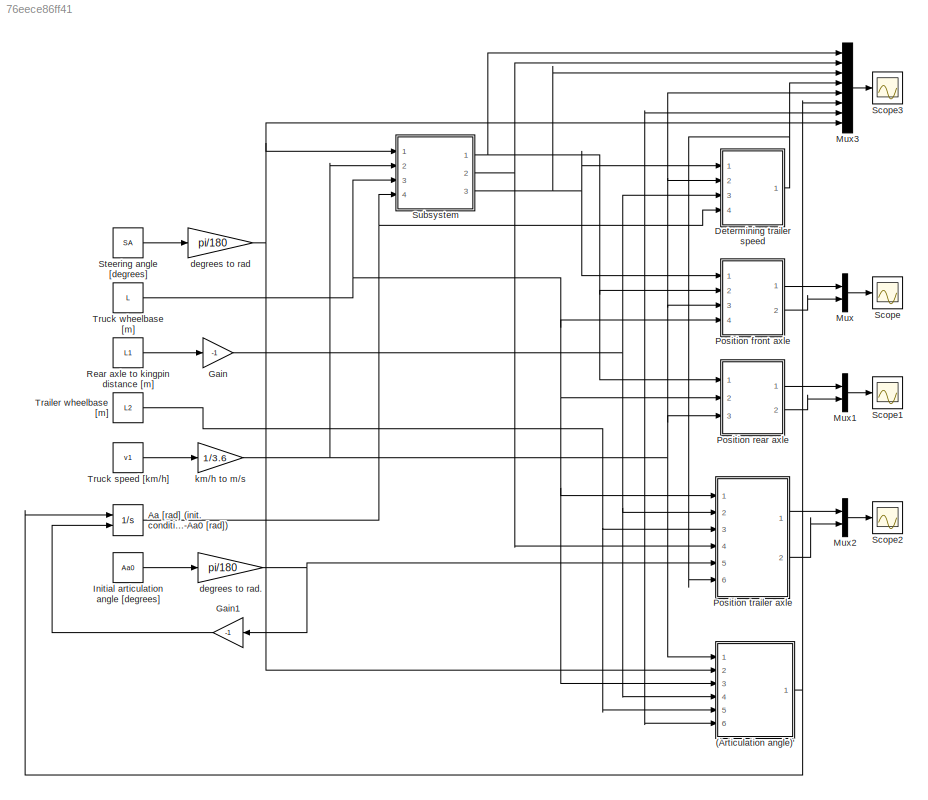
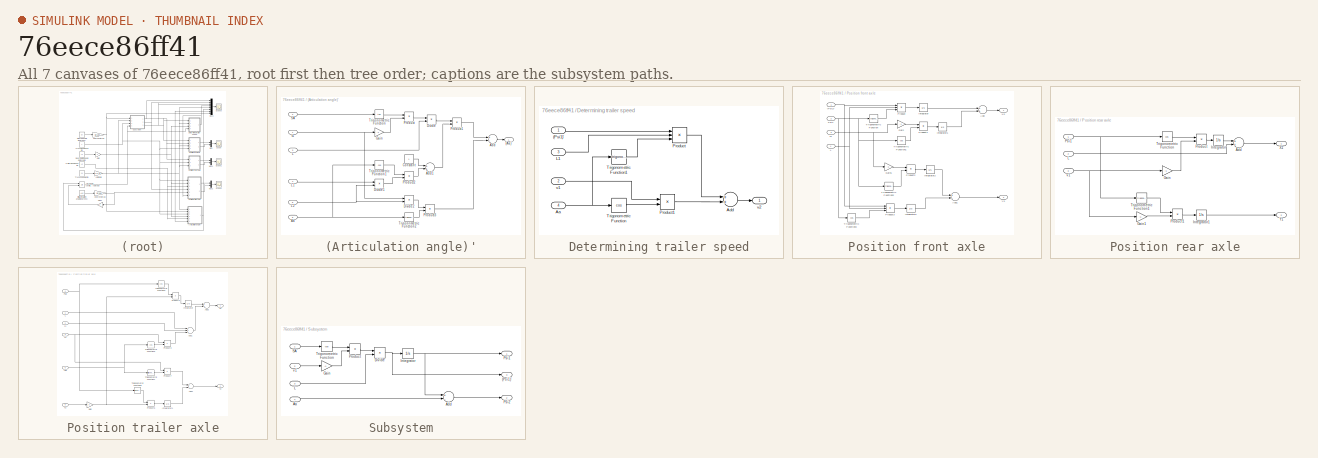
[diagram: thumbnail index - all 7 canvases of the model, root first then tree order]
MODEL slx_76eece86ff41
KIND model
CONFIG AbsTol = auto
CONFIG FixedStep = auto
CONFIG MaxStep = auto
CONFIG MinStep = auto
CONFIG RelTol = 1e-3
CONFIG SampleTimeConstraint = Unconstrained
CONFIG Solver = ode45
CONFIG SolverMode = Auto
CONFIG SolverName = ode45
CONFIG StartTime = 0.0
CONFIG StopTime = 80
BLOCK [SubSystem] (Articulation angle)'
  Ports = [6, 1]
  RequestExecContextInheritance = off
BLOCK [Outport] (Articulation angle)'/(Aa)'
  IconDisplay = Port number
BLOCK [Inport] (Articulation angle)'/Aa
  IconDisplay = Port number
  Port = 6
BLOCK [Sum] (Articulation angle)'/Add
  InputSameDT = off
  Inputs = +-
  OutDataTypeStr = Inherit: Inherit via internal rule
  Ports = [2, 1]
  SaturateOnIntegerOverflow = off
BLOCK [Sum] (Articulation angle)'/Add1
  InputSameDT = off
  OutDataTypeStr = Inherit: Inherit via internal rule
  Ports = [2, 1]
  SaturateOnIntegerOverflow = off
BLOCK [Constant] (Articulation angle)'/Constant
BLOCK [Product] (Articulation angle)'/Divide
  InputSameDT = off
  Inputs = */
  OutDataTypeStr = Inherit: Inherit via internal rule
  Ports = [2, 1]
  RndMeth = Floor
  SaturateOnIntegerOverflow = off
BLOCK [Product] (Articulation angle)'/Divide1
  InputSameDT = off
  Inputs = */
  OutDataTypeStr = Inherit: Inherit via internal rule
  Ports = [2, 1]
  RndMeth = Floor
  SaturateOnIntegerOverflow = off
BLOCK [Product] (Articulation angle)'/Divide2
  InputSameDT = off
  Inputs = */
  OutDataTypeStr = Inherit: Inherit via internal rule
  Ports = [2, 1]
  RndMeth = Floor
  SaturateOnIntegerOverflow = off
BLOCK [Gain] (Articulation angle)'/Gain
  Gain = -1
  OutDataTypeStr = Inherit: Inherit via internal rule
  ParamDataTypeStr = Inherit: Inherit via internal rule
  SaturateOnIntegerOverflow = off
BLOCK [Inport] (Articulation angle)'/L
  IconDisplay = Port number
  Port = 3
BLOCK [Inport] (Articulation angle)'/L1
  IconDisplay = Port number
  Port = 4
BLOCK [Inport] (Articulation angle)'/L2
  IconDisplay = Port number
  Port = 5
BLOCK [Product] (Articulation angle)'/Product
  InputSameDT = off
  OutDataTypeStr = Inherit: Inherit via internal rule
  Ports = [2, 1]
  RndMeth = Floor
  SaturateOnIntegerOverflow = off
BLOCK [Product] (Articulation angle)'/Product1
  InputSameDT = off
  OutDataTypeStr = Inherit: Inherit via internal rule
  Ports = [2, 1]
  RndMeth = Floor
  SaturateOnIntegerOverflow = off
BLOCK [Product] (Articulation angle)'/Product2
  InputSameDT = off
  OutDataTypeStr = Inherit: Inherit via internal rule
  Ports = [2, 1]
  RndMeth = Floor
  SaturateOnIntegerOverflow = off
BLOCK [Product] (Articulation angle)'/Product3
  InputSameDT = off
  OutDataTypeStr = Inherit: Inherit via internal rule
  Ports = [2, 1]
  RndMeth = Floor
  SaturateOnIntegerOverflow = off
BLOCK [Inport] (Articulation angle)'/SA
  IconDisplay = Port number
  Port = 2
BLOCK [Trigonometry] (Articulation angle)'/Trigonometric Function
  Operator = tan
  Ports = [1, 1]
BLOCK [Trigonometry] (Articulation angle)'/Trigonometric Function1
  Operator = cos
  Ports = [1, 1]
BLOCK [Trigonometry] (Articulation angle)'/Trigonometric Function2
  Ports = [1, 1]
BLOCK [Inport] (Articulation angle)'/v1
  IconDisplay = Port number
BLOCK [Integrator] Aa [rad] (init. condition = -Aa0 [rad])
  InitialCondition = ((-Aa0*pi)/180)
  InitialConditionSource = external
  Ports = [2, 1]
BLOCK [SubSystem] Determining trailer speed
  Ports = [4, 1]
  RequestExecContextInheritance = off
BLOCK [Inport] Determining trailer speed/(Psi1)'
  IconDisplay = Port number
BLOCK [Inport] Determining trailer speed/Aa
  IconDisplay = Port number
  Port = 4
BLOCK [Sum] Determining trailer speed/Add
  InputSameDT = off
  OutDataTypeStr = Inherit: Inherit via internal rule
  Ports = [2, 1]
  SaturateOnIntegerOverflow = off
BLOCK [Inport] Determining trailer speed/L1
  IconDisplay = Port number
  Port = 3
BLOCK [Product] Determining trailer speed/Product
  InputSameDT = off
  Inputs = 3
  OutDataTypeStr = Inherit: Inherit via internal rule
  Ports = [3, 1]
  RndMeth = Floor
  SaturateOnIntegerOverflow = off
BLOCK [Product] Determining trailer speed/Product1
  InputSameDT = off
  OutDataTypeStr = Inherit: Inherit via internal rule
  Ports = [2, 1]
  RndMeth = Floor
  SaturateOnIntegerOverflow = off
BLOCK [Trigonometry] Determining trailer speed/Trigonometric Function
  Operator = cos
  Ports = [1, 1]
BLOCK [Trigonometry] Determining trailer speed/Trigonometric Function1
  Ports = [1, 1]
BLOCK [Inport] Determining trailer speed/v1
  IconDisplay = Port number
  Port = 2
BLOCK [Outport] Determining trailer speed/v2
  IconDisplay = Port number
BLOCK [Gain] Gain
  Gain = -1
  OutDataTypeStr = Inherit: Inherit via internal rule
  ParamDataTypeStr = Inherit: Inherit via internal rule
  SaturateOnIntegerOverflow = off
BLOCK [Gain] Gain1
  Gain = -1
  OutDataTypeStr = Inherit: Inherit via internal rule
  ParamDataTypeStr = Inherit: Inherit via internal rule
  SaturateOnIntegerOverflow = off
BLOCK [Constant] Initial articulation angle [degrees]
  Value = Aa0
BLOCK [Mux] Mux
  DisplayOption = bar
  Inputs = 2
  Ports = [2, 1]
BLOCK [Mux] Mux1
  DisplayOption = bar
  Inputs = 2
  Ports = [2, 1]
BLOCK [Mux] Mux2
  DisplayOption = bar
  Inputs = 2
  Ports = [2, 1]
BLOCK [Mux] Mux3
  DisplayOption = bar
  Inputs = 8
  Ports = [8, 1]
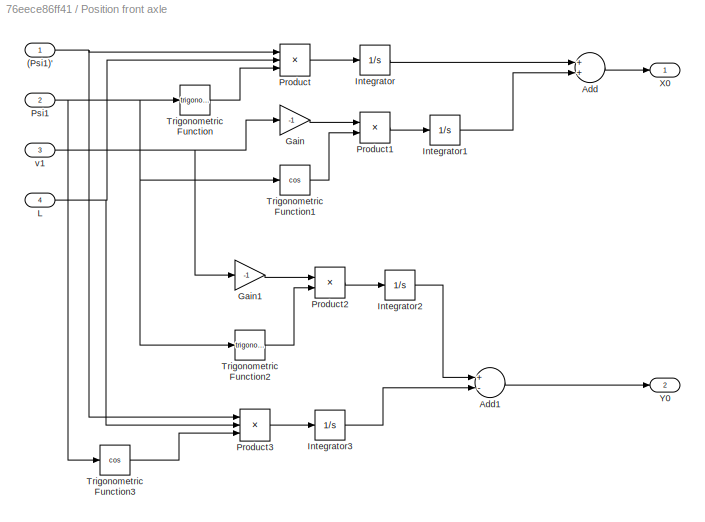
BLOCK [SubSystem] Position front axle
  Ports = [4, 2]
  RequestExecContextInheritance = off
BLOCK [Inport] Position front axle/(Psi1)'
  IconDisplay = Port number
BLOCK [Sum] Position front axle/Add
  InputSameDT = off
  OutDataTypeStr = Inherit: Inherit via internal rule
  Ports = [2, 1]
  SaturateOnIntegerOverflow = off
BLOCK [Sum] Position front axle/Add1
  InputSameDT = off
  Inputs = +-
  OutDataTypeStr = Inherit: Inherit via internal rule
  Ports = [2, 1]
  SaturateOnIntegerOverflow = off
BLOCK [Gain] Position front axle/Gain
  Gain = -1
  OutDataTypeStr = Inherit: Inherit via internal rule
  ParamDataTypeStr = Inherit: Inherit via internal rule
  SaturateOnIntegerOverflow = off
BLOCK [Gain] Position front axle/Gain1
  Gain = -1
  OutDataTypeStr = Inherit: Inherit via internal rule
  ParamDataTypeStr = Inherit: Inherit via internal rule
  SaturateOnIntegerOverflow = off
BLOCK [Integrator] Position front axle/Integrator
  Ports = [1, 1]
BLOCK [Integrator] Position front axle/Integrator1
  Ports = [1, 1]
BLOCK [Integrator] Position front axle/Integrator2
  Ports = [1, 1]
BLOCK [Integrator] Position front axle/Integrator3
  Ports = [1, 1]
BLOCK [Inport] Position front axle/L
  IconDisplay = Port number
  Port = 4
BLOCK [Product] Position front axle/Product
  InputSameDT = off
  Inputs = 3
  OutDataTypeStr = Inherit: Inherit via internal rule
  Ports = [3, 1]
  RndMeth = Floor
  SaturateOnIntegerOverflow = off
BLOCK [Product] Position front axle/Product1
  InputSameDT = off
  OutDataTypeStr = Inherit: Inherit via internal rule
  Ports = [2, 1]
  RndMeth = Floor
  SaturateOnIntegerOverflow = off
BLOCK [Product] Position front axle/Product2
  InputSameDT = off
  OutDataTypeStr = Inherit: Inherit via internal rule
  Ports = [2, 1]
  RndMeth = Floor
  SaturateOnIntegerOverflow = off
BLOCK [Product] Position front axle/Product3
  InputSameDT = off
  Inputs = 3
  OutDataTypeStr = Inherit: Inherit via internal rule
  Ports = [3, 1]
  RndMeth = Floor
  SaturateOnIntegerOverflow = off
BLOCK [Inport] Position front axle/Psi1
  IconDisplay = Port number
  Port = 2
BLOCK [Trigonometry] Position front axle/Trigonometric Function
  Ports = [1, 1]
BLOCK [Trigonometry] Position front axle/Trigonometric Function1
  Operator = cos
  Ports = [1, 1]
BLOCK [Trigonometry] Position front axle/Trigonometric Function2
  Ports = [1, 1]
BLOCK [Trigonometry] Position front axle/Trigonometric Function3
  Operator = cos
  Ports = [1, 1]
BLOCK [Outport] Position front axle/X0
  IconDisplay = Port number
BLOCK [Outport] Position front axle/Y0
  IconDisplay = Port number
  Port = 2
BLOCK [Inport] Position front axle/v1
  IconDisplay = Port number
  Port = 3
BLOCK [SubSystem] Position rear axle
  Ports = [3, 2]
  RequestExecContextInheritance = off
BLOCK [Sum] Position rear axle/Add
  InputSameDT = off
  OutDataTypeStr = Inherit: Inherit via internal rule
  Ports = [2, 1]
  SaturateOnIntegerOverflow = off
BLOCK [Gain] Position rear axle/Gain
  Gain = -1
  OutDataTypeStr = Inherit: Inherit via internal rule
  ParamDataTypeStr = Inherit: Inherit via internal rule
  SaturateOnIntegerOverflow = off
BLOCK [Gain] Position rear axle/Gain1
  Gain = -1
  OutDataTypeStr = Inherit: Inherit via internal rule
  ParamDataTypeStr = Inherit: Inherit via internal rule
  SaturateOnIntegerOverflow = off
BLOCK [Integrator] Position rear axle/Integrator
  Ports = [1, 1]
BLOCK [Integrator] Position rear axle/Integrator1
  Ports = [1, 1]
BLOCK [Inport] Position rear axle/L
  IconDisplay = Port number
  Port = 2
BLOCK [Product] Position rear axle/Product
  InputSameDT = off
  OutDataTypeStr = Inherit: Inherit via internal rule
  Ports = [2, 1]
  RndMeth = Floor
  SaturateOnIntegerOverflow = off
BLOCK [Product] Position rear axle/Product1
  InputSameDT = off
  OutDataTypeStr = Inherit: Inherit via internal rule
  Ports = [2, 1]
  RndMeth = Floor
  SaturateOnIntegerOverflow = off
BLOCK [Inport] Position rear axle/Psi1
  IconDisplay = Port number
BLOCK [Trigonometry] Position rear axle/Trigonometric Function
  Operator = cos
  Ports = [1, 1]
BLOCK [Trigonometry] Position rear axle/Trigonometric Function1
  Ports = [1, 1]
BLOCK [Outport] Position rear axle/X1
  IconDisplay = Port number
BLOCK [Outport] Position rear axle/Y1
  IconDisplay = Port number
  Port = 2
BLOCK [Inport] Position rear axle/v1
  IconDisplay = Port number
  Port = 3
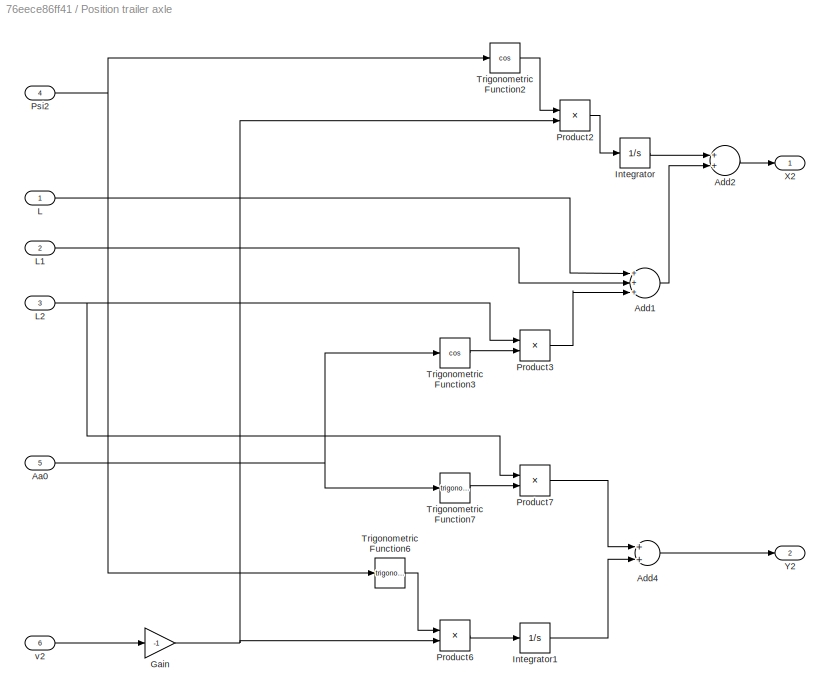
BLOCK [SubSystem] Position trailer axle
  Ports = [6, 2]
  RequestExecContextInheritance = off
BLOCK [Inport] Position trailer axle/Aa0
  IconDisplay = Port number
  Port = 5
BLOCK [Sum] Position trailer axle/Add1
  InputSameDT = off
  Inputs = +++
  OutDataTypeStr = Inherit: Inherit via internal rule
  Ports = [3, 1]
  SaturateOnIntegerOverflow = off
BLOCK [Sum] Position trailer axle/Add2
  InputSameDT = off
  OutDataTypeStr = Inherit: Inherit via internal rule
  Ports = [2, 1]
  SaturateOnIntegerOverflow = off
BLOCK [Sum] Position trailer axle/Add4
  InputSameDT = off
  OutDataTypeStr = Inherit: Inherit via internal rule
  Ports = [2, 1]
  SaturateOnIntegerOverflow = off
BLOCK [Gain] Position trailer axle/Gain
  Gain = -1
  OutDataTypeStr = Inherit: Inherit via internal rule
  ParamDataTypeStr = Inherit: Inherit via internal rule
  SaturateOnIntegerOverflow = off
BLOCK [Integrator] Position trailer axle/Integrator
  Ports = [1, 1]
BLOCK [Integrator] Position trailer axle/Integrator1
  Ports = [1, 1]
BLOCK [Inport] Position trailer axle/L
  IconDisplay = Port number
BLOCK [Inport] Position trailer axle/L1
  IconDisplay = Port number
  Port = 2
BLOCK [Inport] Position trailer axle/L2
  IconDisplay = Port number
  Port = 3
BLOCK [Product] Position trailer axle/Product2
  InputSameDT = off
  OutDataTypeStr = Inherit: Inherit via internal rule
  Ports = [2, 1]
  RndMeth = Floor
  SaturateOnIntegerOverflow = off
BLOCK [Product] Position trailer axle/Product3
  InputSameDT = off
  OutDataTypeStr = Inherit: Inherit via internal rule
  Ports = [2, 1]
  RndMeth = Floor
  SaturateOnIntegerOverflow = off
BLOCK [Product] Position trailer axle/Product6
  InputSameDT = off
  OutDataTypeStr = Inherit: Inherit via internal rule
  Ports = [2, 1]
  RndMeth = Floor
  SaturateOnIntegerOverflow = off
BLOCK [Product] Position trailer axle/Product7
  InputSameDT = off
  OutDataTypeStr = Inherit: Inherit via internal rule
  Ports = [2, 1]
  RndMeth = Floor
  SaturateOnIntegerOverflow = off
BLOCK [Inport] Position trailer axle/Psi2
  IconDisplay = Port number
  Port = 4
BLOCK [Trigonometry] Position trailer axle/Trigonometric Function2
  Operator = cos
  Ports = [1, 1]
BLOCK [Trigonometry] Position trailer axle/Trigonometric Function3
  Operator = cos
  Ports = [1, 1]
BLOCK [Trigonometry] Position trailer axle/Trigonometric Function6
  Ports = [1, 1]
BLOCK [Trigonometry] Position trailer axle/Trigonometric Function7
  Ports = [1, 1]
BLOCK [Outport] Position trailer axle/X2
  IconDisplay = Port number
BLOCK [Outport] Position trailer axle/Y2
  IconDisplay = Port number
  Port = 2
BLOCK [Inport] Position trailer axle/v2
  IconDisplay = Port number
  Port = 6
BLOCK [Constant] Rear axle to kingpin distance [m]
  Value = L1
BLOCK [Scope] Scope
  Floating = off
  LimitDataPoints = off
  NumInputPorts = 1
  Ports = [1]
  SaveName = DATA0
  SaveToWorkspace = on
BLOCK [Scope] Scope1
  Floating = off
  LimitDataPoints = off
  NumInputPorts = 1
  Ports = [1]
  SaveName = DATA1
  SaveToWorkspace = on
BLOCK [Scope] Scope2
  Floating = off
  LimitDataPoints = off
  NumInputPorts = 1
  Ports = [1]
  SaveName = DATA2
  SaveToWorkspace = on
BLOCK [Scope] Scope3
  Floating = off
  LimitDataPoints = off
  NumInputPorts = 1
  Ports = [1]
  SaveName = DATA3
  SaveToWorkspace = on
BLOCK [Constant] Steering angle [degrees]
  Value = SA
BLOCK [SubSystem] Subsystem
  Ports = [4, 3]
  RequestExecContextInheritance = off
BLOCK [Outport] Subsystem/(Psi1)'
  IconDisplay = Port number
  Port = 3
BLOCK [Inport] Subsystem/Aa
  IconDisplay = Port number
  Port = 4
BLOCK [Sum] Subsystem/Add
  InputSameDT = off
  Inputs = +-
  OutDataTypeStr = Inherit: Inherit via internal rule
  Ports = [2, 1]
  SaturateOnIntegerOverflow = off
BLOCK [Product] Subsystem/Divide
  InputSameDT = off
  Inputs = */
  OutDataTypeStr = Inherit: Inherit via internal rule
  Ports = [2, 1]
  RndMeth = Floor
  SaturateOnIntegerOverflow = off
BLOCK [Gain] Subsystem/Gain
  Gain = -1
  OutDataTypeStr = Inherit: Inherit via internal rule
  ParamDataTypeStr = Inherit: Inherit via internal rule
  SaturateOnIntegerOverflow = off
BLOCK [Integrator] Subsystem/Integrator
  Ports = [1, 1]
BLOCK [Inport] Subsystem/L
  IconDisplay = Port number
  Port = 3
BLOCK [Product] Subsystem/Product
  InputSameDT = off
  OutDataTypeStr = Inherit: Inherit via internal rule
  Ports = [2, 1]
  RndMeth = Floor
  SaturateOnIntegerOverflow = off
BLOCK [Outport] Subsystem/Psi1
  IconDisplay = Port number
BLOCK [Outport] Subsystem/Psi2
  IconDisplay = Port number
  Port = 2
BLOCK [Inport] Subsystem/SA
  IconDisplay = Port number
BLOCK [Trigonometry] Subsystem/Trigonometric Function
  Operator = tan
  Ports = [1, 1]
BLOCK [Inport] Subsystem/v1
  IconDisplay = Port number
  Port = 2
BLOCK [Constant] Trailer wheelbase [m] 
  Value = L2
BLOCK [Constant] Truck speed [km//h]
  Value = v1
BLOCK [Constant] Truck wheelbase [m]
  Value = L
BLOCK [Gain] degrees to rad
  Gain = pi/180
  OutDataTypeStr = Inherit: Inherit via internal rule
  ParamDataTypeStr = Inherit: Inherit via internal rule
  SaturateOnIntegerOverflow = off
BLOCK [Gain] degrees to rad.
  Gain = pi/180
  OutDataTypeStr = Inherit: Inherit via internal rule
  ParamDataTypeStr = Inherit: Inherit via internal rule
  SaturateOnIntegerOverflow = off
BLOCK [Gain] km//h to m//s
  Gain = 1/3.6
  OutDataTypeStr = Inherit: Inherit via internal rule
  ParamDataTypeStr = Inherit: Inherit via internal rule
  SaturateOnIntegerOverflow = off
NET (Articulation angle)'/Aa:1 -> (Articulation angle)'/Trigonometric Function1:1, (Articulation angle)'/Trigonometric Function2:1
LINE (Articulation angle)'/Add1:1 -> (Articulation angle)'/Product1:2
LINE (Articulation angle)'/Add:1 -> (Articulation angle)'/(Aa)':1
LINE (Articulation angle)'/Constant:1 -> (Articulation angle)'/Add1:1
LINE (Articulation angle)'/Divide1:1 -> (Articulation angle)'/Product2:2
LINE (Articulation angle)'/Divide2:1 -> (Articulation angle)'/Product3:1
LINE (Articulation angle)'/Divide:1 -> (Articulation angle)'/Product1:1
LINE (Articulation angle)'/Gain:1 -> (Articulation angle)'/Product:2
LINE (Articulation angle)'/L1:1 -> (Articulation angle)'/Divide1:1
NET (Articulation angle)'/L2:1 -> (Articulation angle)'/Divide1:2, (Articulation angle)'/Divide2:2
LINE (Articulation angle)'/L:1 -> (Articulation angle)'/Divide:2
LINE (Articulation angle)'/Product1:1 -> (Articulation angle)'/Add:1
LINE (Articulation angle)'/Product2:1 -> (Articulation angle)'/Add1:2
LINE (Articulation angle)'/Product3:1 -> (Articulation angle)'/Add:2
LINE (Articulation angle)'/Product:1 -> (Articulation angle)'/Divide:1
LINE (Articulation angle)'/SA:1 -> (Articulation angle)'/Trigonometric Function:1
LINE (Articulation angle)'/Trigonometric Function1:1 -> (Articulation angle)'/Product2:1
LINE (Articulation angle)'/Trigonometric Function2:1 -> (Articulation angle)'/Product3:2
LINE (Articulation angle)'/Trigonometric Function:1 -> (Articulation angle)'/Product:1
NET (Articulation angle)'/v1:1 -> (Articulation angle)'/Divide2:1, (Articulation angle)'/Gain:1
NET (Articulation angle)':1 -> Aa [rad] (init. condition = -Aa0 [rad]):1, Mux3:6
NET Aa [rad] (init. condition = -Aa0 [rad]):1 -> (Articulation angle)':6, Determining trailer speed:4, Mux3:7, Subsystem:4
LINE Determining trailer speed/(Psi1)':1 -> Determining trailer speed/Product:1
NET Determining trailer speed/Aa:1 -> Determining trailer speed/Trigonometric Function1:1, Determining trailer speed/Trigonometric Function:1
LINE Determining trailer speed/Add:1 -> Determining trailer speed/v2:1
LINE Determining trailer speed/L1:1 -> Determining trailer speed/Product:2
LINE Determining trailer speed/Product1:1 -> Determining trailer speed/Add:2
LINE Determining trailer speed/Product:1 -> Determining trailer speed/Add:1
LINE Determining trailer speed/Trigonometric Function1:1 -> Determining trailer speed/Product:3
LINE Determining trailer speed/Trigonometric Function:1 -> Determining trailer speed/Product1:2
LINE Determining trailer speed/v1:1 -> Determining trailer speed/Product1:1
NET Determining trailer speed:1 -> Mux3:4, Position trailer axle:6
LINE Gain1:1 -> Aa [rad] (init. condition = -Aa0 [rad]):2
NET Gain:1 -> (Articulation angle)':4, Determining trailer speed:3, Position trailer axle:2
LINE Initial articulation angle [degrees]:1 -> degrees to rad.:1
LINE Mux1:1 -> Scope1:1
LINE Mux2:1 -> Scope2:1
LINE Mux3:1 -> Scope3:1
LINE Mux:1 -> Scope:1
NET Position front axle/(Psi1)':1 -> Position front axle/Product3:1, Position front axle/Product:1
LINE Position front axle/Add1:1 -> Position front axle/Y0:1
LINE Position front axle/Add:1 -> Position front axle/X0:1
LINE Position front axle/Gain1:1 -> Position front axle/Product2:1
LINE Position front axle/Gain:1 -> Position front axle/Product1:1
LINE Position front axle/Integrator1:1 -> Position front axle/Add:2
LINE Position front axle/Integrator2:1 -> Position front axle/Add1:1
LINE Position front axle/Integrator3:1 -> Position front axle/Add1:2
LINE Position front axle/Integrator:1 -> Position front axle/Add:1
NET Position front axle/L:1 -> Position front axle/Product3:2, Position front axle/Product:2
LINE Position front axle/Product1:1 -> Position front axle/Integrator1:1
LINE Position front axle/Product2:1 -> Position front axle/Integrator2:1
LINE Position front axle/Product3:1 -> Position front axle/Integrator3:1
LINE Position front axle/Product:1 -> Position front axle/Integrator:1
NET Position front axle/Psi1:1 -> Position front axle/Trigonometric Function1:1, Position front axle/Trigonometric Function2:1, Position front axle/Trigonometric Function3:1, Position front axle/Trigonometric Function:1
LINE Position front axle/Trigonometric Function1:1 -> Position front axle/Product1:2
LINE Position front axle/Trigonometric Function2:1 -> Position front axle/Product2:2
LINE Position front axle/Trigonometric Function3:1 -> Position front axle/Product3:3
LINE Position front axle/Trigonometric Function:1 -> Position front axle/Product:3
NET Position front axle/v1:1 -> Position front axle/Gain1:1, Position front axle/Gain:1
LINE Position front axle:1 -> Mux:1
LINE Position front axle:2 -> Mux:2
LINE Position rear axle/Add:1 -> Position rear axle/X1:1
LINE Position rear axle/Gain1:1 -> Position rear axle/Product1:2
LINE Position rear axle/Gain:1 -> Position rear axle/Product:2
LINE Position rear axle/Integrator1:1 -> Position rear axle/Y1:1
LINE Position rear axle/Integrator:1 -> Position rear axle/Add:1
LINE Position rear axle/L:1 -> Position rear axle/Add:2
LINE Position rear axle/Product1:1 -> Position rear axle/Integrator1:1
LINE Position rear axle/Product:1 -> Position rear axle/Integrator:1
NET Position rear axle/Psi1:1 -> Position rear axle/Trigonometric Function1:1, Position rear axle/Trigonometric Function:1
LINE Position rear axle/Trigonometric Function1:1 -> Position rear axle/Product1:1
LINE Position rear axle/Trigonometric Function:1 -> Position rear axle/Product:1
NET Position rear axle/v1:1 -> Position rear axle/Gain1:1, Position rear axle/Gain:1
LINE Position rear axle:1 -> Mux1:1
LINE Position rear axle:2 -> Mux1:2
NET Position trailer axle/Aa0:1 -> Position trailer axle/Trigonometric Function3:1, Position trailer axle/Trigonometric Function7:1
LINE Position trailer axle/Add1:1 -> Position trailer axle/Add2:2
LINE Position trailer axle/Add2:1 -> Position trailer axle/X2:1
LINE Position trailer axle/Add4:1 -> Position trailer axle/Y2:1
NET Position trailer axle/Gain:1 -> Position trailer axle/Product2:2, Position trailer axle/Product6:2
LINE Position trailer axle/Integrator1:1 -> Position trailer axle/Add4:2
LINE Position trailer axle/Integrator:1 -> Position trailer axle/Add2:1
LINE Position trailer axle/L1:1 -> Position trailer axle/Add1:2
NET Position trailer axle/L2:1 -> Position trailer axle/Product3:1, Position trailer axle/Product7:1
LINE Position trailer axle/L:1 -> Position trailer axle/Add1:1
LINE Position trailer axle/Product2:1 -> Position trailer axle/Integrator:1
LINE Position trailer axle/Product3:1 -> Position trailer axle/Add1:3
LINE Position trailer axle/Product6:1 -> Position trailer axle/Integrator1:1
LINE Position trailer axle/Product7:1 -> Position trailer axle/Add4:1
NET Position trailer axle/Psi2:1 -> Position trailer axle/Trigonometric Function2:1, Position trailer axle/Trigonometric Function6:1
LINE Position trailer axle/Trigonometric Function2:1 -> Position trailer axle/Product2:1
LINE Position trailer axle/Trigonometric Function3:1 -> Position trailer axle/Product3:2
LINE Position trailer axle/Trigonometric Function6:1 -> Position trailer axle/Product6:1
LINE Position trailer axle/Trigonometric Function7:1 -> Position trailer axle/Product7:2
LINE Position trailer axle/v2:1 -> Position trailer axle/Gain:1
LINE Position trailer axle:1 -> Mux2:1
LINE Position trailer axle:2 -> Mux2:2
LINE Rear axle to kingpin distance [m]:1 -> Gain:1
LINE Steering angle [degrees]:1 -> degrees to rad:1
LINE Subsystem/Aa:1 -> Subsystem/Add:2
LINE Subsystem/Add:1 -> Subsystem/Psi2:1
NET Subsystem/Divide:1 -> Subsystem/(Psi1)':1, Subsystem/Integrator:1
LINE Subsystem/Gain:1 -> Subsystem/Product:2
NET Subsystem/Integrator:1 -> Subsystem/Add:1, Subsystem/Psi1:1
LINE Subsystem/L:1 -> Subsystem/Divide:2
LINE Subsystem/Product:1 -> Subsystem/Divide:1
LINE Subsystem/SA:1 -> Subsystem/Trigonometric Function:1
LINE Subsystem/Trigonometric Function:1 -> Subsystem/Product:1
LINE Subsystem/v1:1 -> Subsystem/Gain:1
NET Subsystem:1 -> Mux3:1, Position front axle:2, Position rear axle:1
NET Subsystem:2 -> Mux3:2, Position trailer axle:4
NET Subsystem:3 -> Determining trailer speed:1, Mux3:3, Position front axle:1
NET Trailer wheelbase [m] :1 -> (Articulation angle)':5, Position trailer axle:3
LINE Truck speed [km//h]:1 -> km//h to m//s:1
NET Truck wheelbase [m]:1 -> (Articulation angle)':3, Position front axle:4, Position rear axle:2, Position trailer axle:1, Subsystem:3
NET degrees to rad.:1 -> Gain1:1, Position trailer axle:5
NET degrees to rad:1 -> (Articulation angle)':2, Mux3:8, Subsystem:1
NET km//h to m//s:1 -> (Articulation angle)':1, Determining trailer speed:2, Mux3:5, Position front axle:3, Position rear axle:3, Subsystem:2
note: NET lines group one-source signal fan-out (src -> all destinations, sorted); 1:1 wires keep LINE
